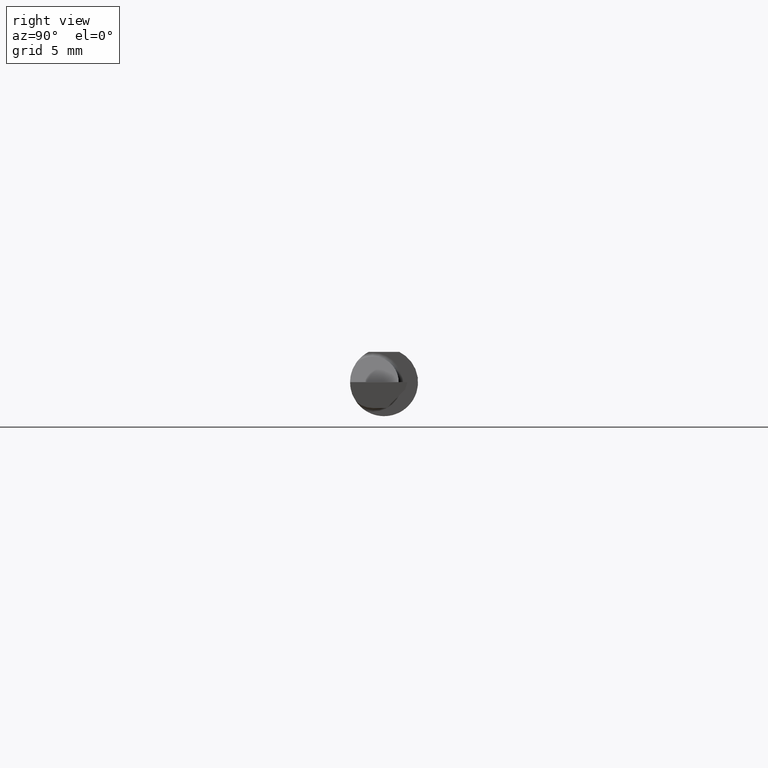
[diagram: clean part render]
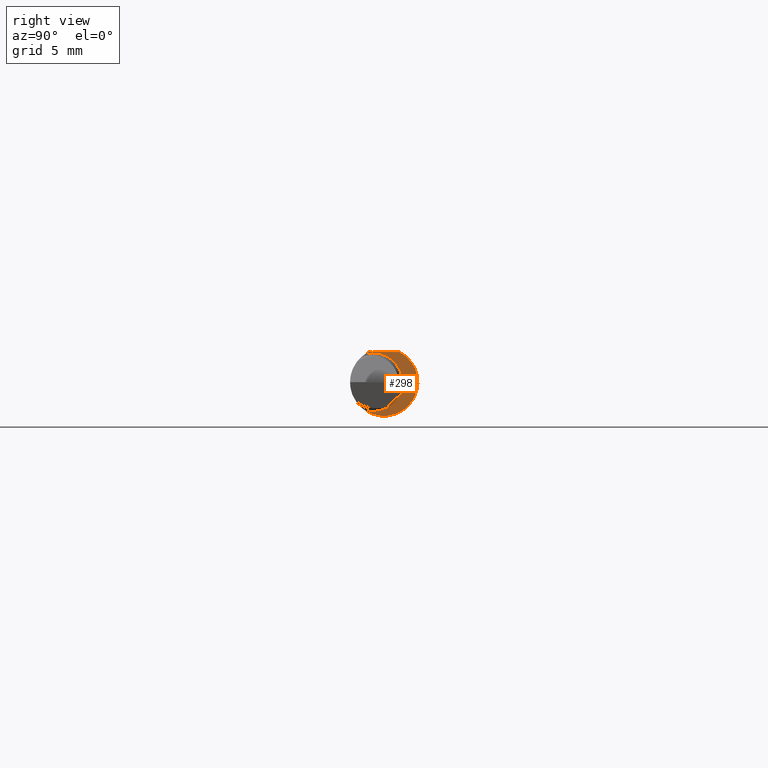
[diagram: same view with one face highlighted and labeled with its STEP entity id]
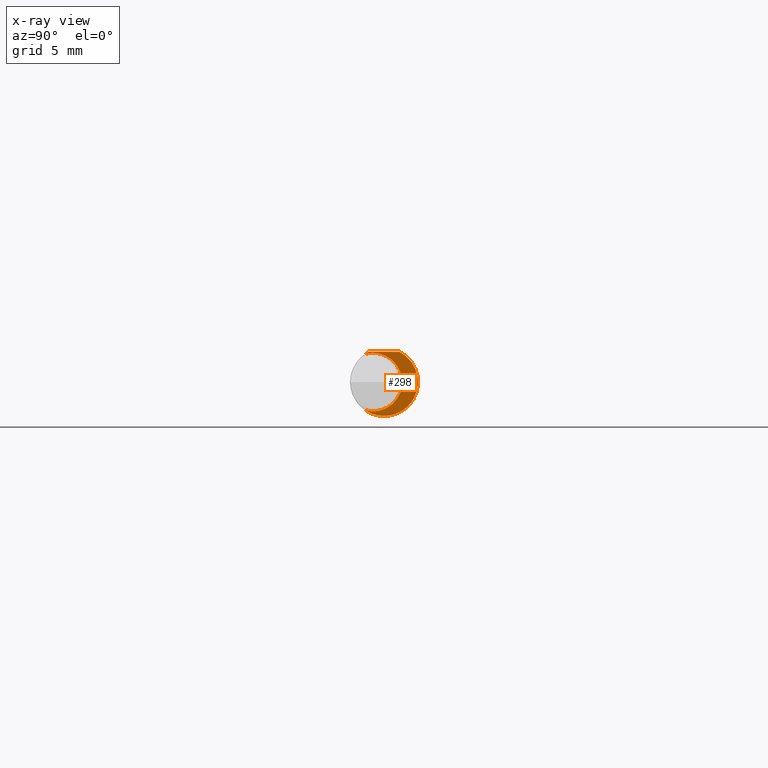
[diagram: x-ray of the same camera — body ghosted, the highlighted face saturated]
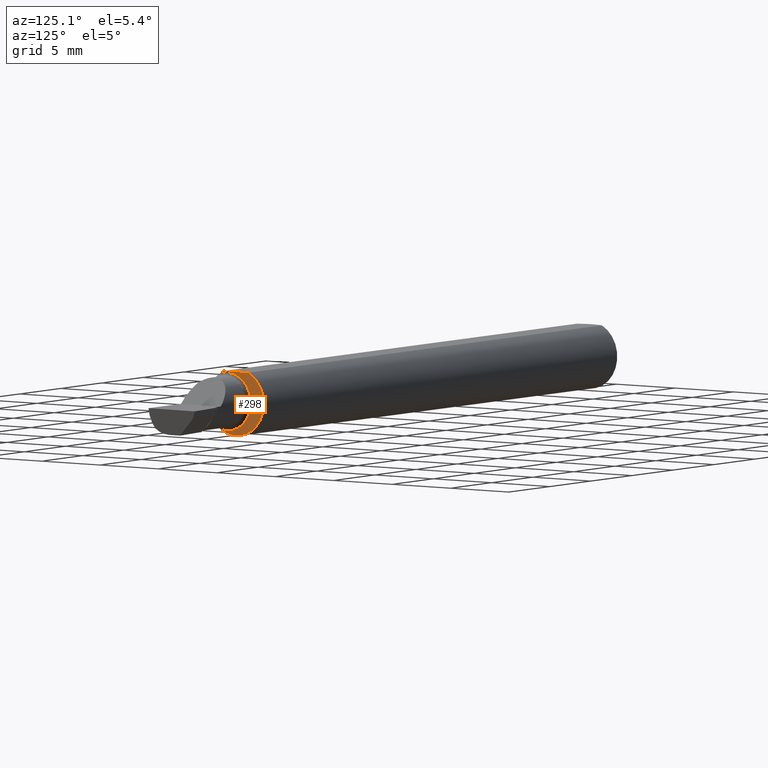
[diagram: same view with one face highlighted and labeled with its STEP entity id]
A machine part, right view. The second image highlights one B-rep face of the part: STEP entity #298.
The next image is the same camera in x-ray: the body ghosted, the highlighted face saturated — about 4% of this face is hidden behind the body in this view.
A second angle (auxiliary view) of the same face is appended — the face is thin or edge-on in the first view.
In plain terms, the highlighted planar face has unit normal (1, 0, 0).
Its self-contained STEP definition (entity closure, byte-faithful):
#1 = AXIS2_PLACEMENT_3D ( 'NONE', #91, #97, #9 ) ;
#9 = DIRECTION ( 'NONE',  ( 0.000000000000000000, -1.000000000000000000, 0.000000000000000000 ) ) ;
#15 = ORIENTED_EDGE ( 'NONE', *, *, #387, .T. ) ;
#21 = DIRECTION ( 'NONE',  ( 1.000000000000000000, 4.268512490100411279E-18, 0.000000000000000000 ) ) ;
#24 = CARTESIAN_POINT ( 'NONE',  ( 1.709999999999999964, 0.04209513035969836975, 0.08360000000000000764 ) ) ;
#37 = EDGE_LOOP ( 'NONE', ( #117, #461, #368, #15 ) ) ;
#39 = CARTESIAN_POINT ( 'NONE',  ( 1.709999999999999964, 0.05039999999999997954, 0.000000000000000000 ) ) ;
#43 = CIRCLE ( 'NONE', #403, 0.09360000000000001652 ) ;
#61 = DIRECTION ( 'NONE',  ( 0.000000000000000000, 1.000000000000000000, 0.000000000000000000 ) ) ;
#69 = DIRECTION ( 'NONE',  ( 1.000000000000000000, 4.268512490100411279E-18, 0.000000000000000000 ) ) ;
#77 = DIRECTION ( 'NONE',  ( -4.268512490100411279E-18, 1.000000000000000000, 0.000000000000000000 ) ) ;
#91 = CARTESIAN_POINT ( 'NONE',  ( 1.709999999999999964, -0.03060000000000022424, 0.000000000000000000 ) ) ;
#93 = EDGE_CURVE ( 'NONE', #404, #283, #189, .T. ) ;
#94 = CARTESIAN_POINT ( 'NONE',  ( 1.709999999999999964, -0.05124705882352875719, -0.07832431909654745394 ) ) ;
#97 = DIRECTION ( 'NONE',  ( -1.000000000000000000, -4.268512490100411279E-18, -0.000000000000000000 ) ) ;
#117 = ORIENTED_EDGE ( 'NONE', *, *, #484, .T. ) ;
#135 = VERTEX_POINT ( 'NONE', #24 ) ;
#185 = FACE_OUTER_BOUND ( 'NONE', #37, .T. ) ;
#189 = CIRCLE ( 'NONE', #269, 0.09360000000000001652 ) ;
#215 = DIRECTION ( 'NONE',  ( 0.000000000000000000, 1.000000000000000000, 0.000000000000000000 ) ) ;
#246 = LINE ( 'NONE', #537, #460 ) ;
#269 = AXIS2_PLACEMENT_3D ( 'NONE', #459, #21, #215 ) ;
#283 = VERTEX_POINT ( 'NONE', #373 ) ;
#294 = CARTESIAN_POINT ( 'NONE',  ( 1.709999999999999964, -0.04209513035969836975, 0.08360000000000000764 ) ) ;
#298 = ADVANCED_FACE ( 'NONE', ( #185 ), #519, .T. ) ;
#337 = EDGE_CURVE ( 'NONE', #135, #404, #246, .T. ) ;
#352 = DIRECTION ( 'NONE',  ( 1.000000000000000000, 4.268512490100411279E-18, 0.000000000000000000 ) ) ;
#368 = ORIENTED_EDGE ( 'NONE', *, *, #93, .T. ) ;
#372 = AXIS2_PLACEMENT_3D ( 'NONE', #39, #69, #77 ) ;
#373 = CARTESIAN_POINT ( 'NONE',  ( 1.709999999999999964, -0.05124705882352875719, 0.07832431909654745394 ) ) ;
#387 = EDGE_CURVE ( 'NONE', #283, #397, #557, .T. ) ;
#397 = VERTEX_POINT ( 'NONE', #94 ) ;
#403 = AXIS2_PLACEMENT_3D ( 'NONE', #505, #352, #61 ) ;
#404 = VERTEX_POINT ( 'NONE', #294 ) ;
#443 = DIRECTION ( 'NONE',  ( 4.268512490100411279E-18, -1.000000000000000000, 1.189000693621284344E-16 ) ) ;
#459 = CARTESIAN_POINT ( 'NONE',  ( 1.709999999999999964, 0.000000000000000000, 0.000000000000000000 ) ) ;
#460 = VECTOR ( 'NONE', #443, 39.37007874015748143 ) ;
#461 = ORIENTED_EDGE ( 'NONE', *, *, #337, .T. ) ;
#484 = EDGE_CURVE ( 'NONE', #397, #135, #43, .T. ) ;
#505 = CARTESIAN_POINT ( 'NONE',  ( 1.709999999999999964, 0.000000000000000000, 0.000000000000000000 ) ) ;
#519 = PLANE ( 'NONE',  #372 ) ;
#537 = CARTESIAN_POINT ( 'NONE',  ( 1.709999999999999964, 0.1436000000000000332, 0.08359999999999999376 ) ) ;
#557 = CIRCLE ( 'NONE', #1, 0.08100000000000021072 ) ;